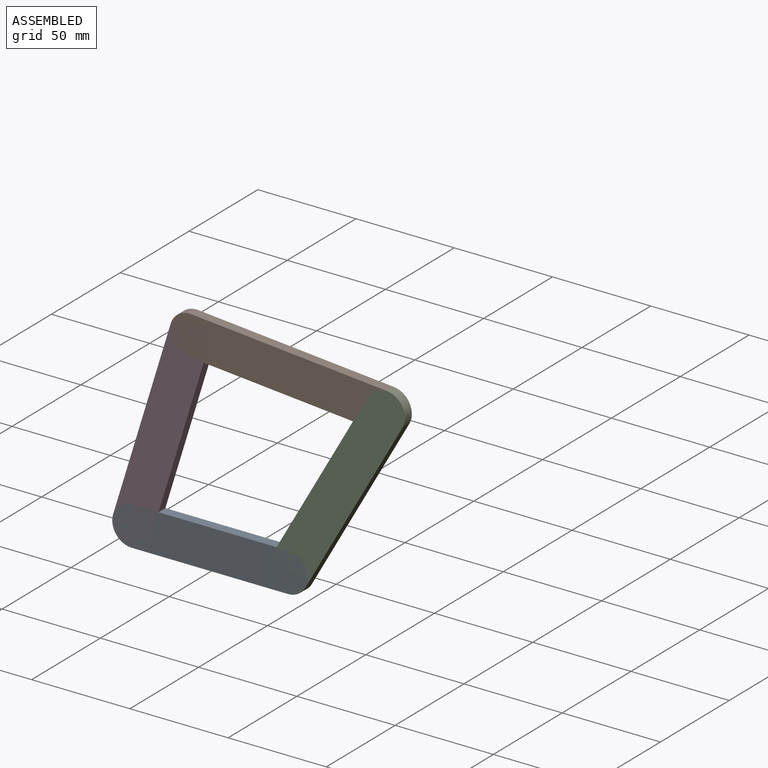
[diagram: assembled view]
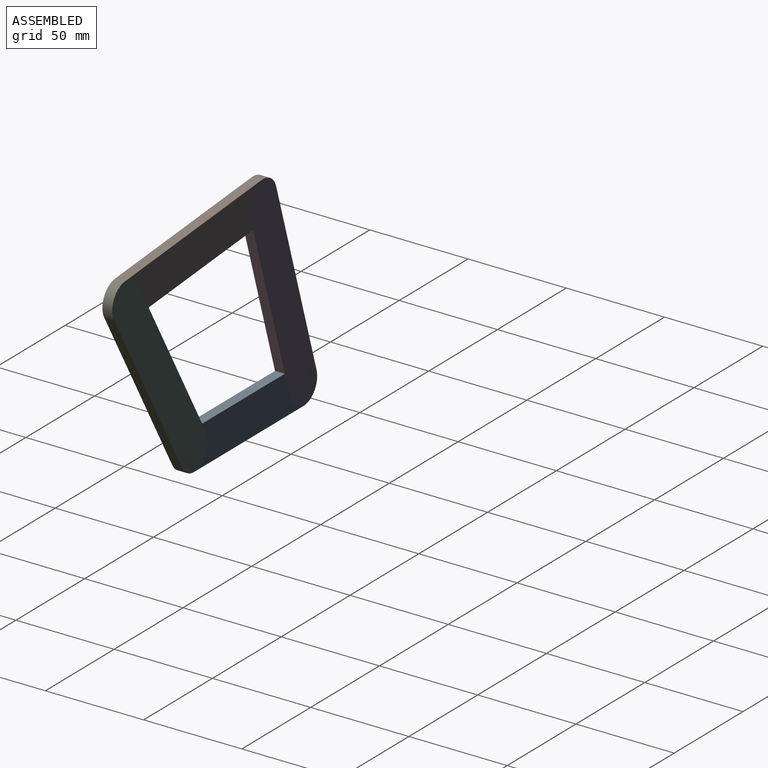
[diagram: assembled view, second angle]
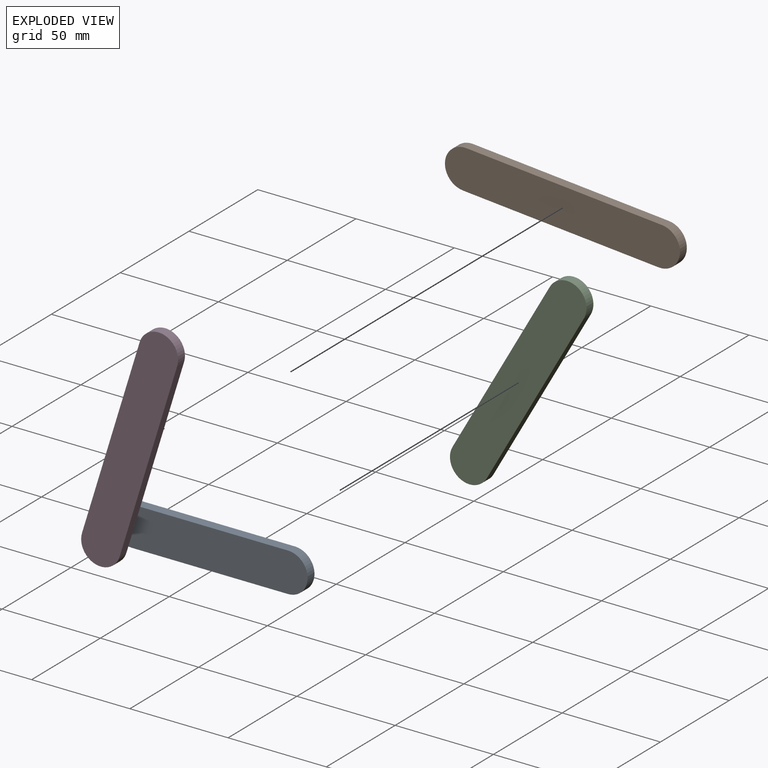
[diagram: exploded view]
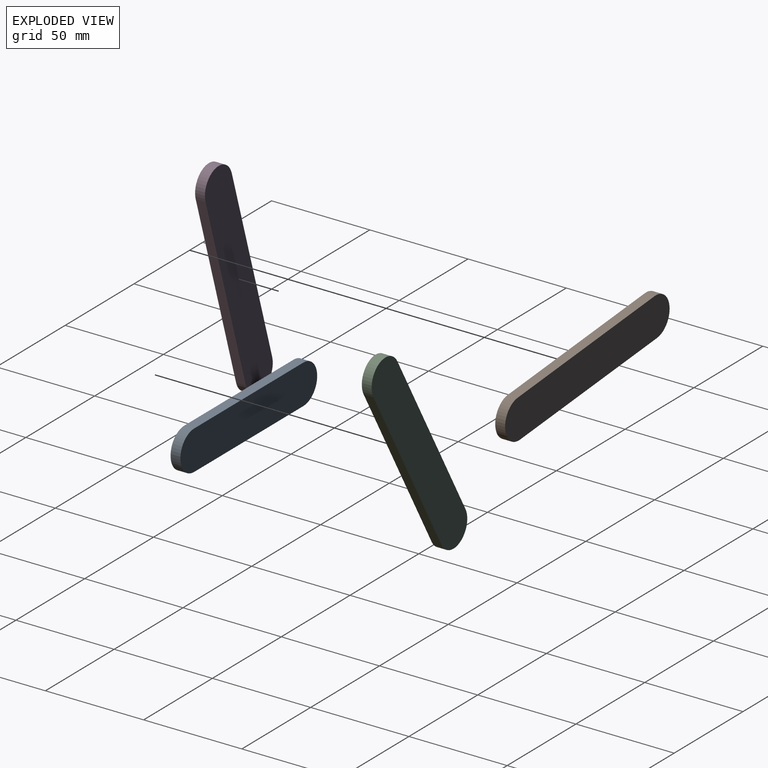
[diagram: exploded view, second angle]
ASSEMBLY  parts=4 mates=4
PART A: 6 faces, bbox 99.4x5x20 mm
  f0: plane 79.43x5mm, normal (0,0,-1), area 397.2mm2, adj f1,f3,f4,f5
  f1: cylinder r=10mm len=20mm, axis (0,1,0), area 157.1mm2, adj f0,f2,f4,f5
  f2: plane 79.43x5mm, normal (0,0,1), area 397.2mm2, adj f1,f3,f4,f5
  f3: cylinder r=10mm len=20mm, axis (0,1,0), area 157.1mm2, adj f0,f2,f4,f5
  f4: plane 99.43x20mm, normal (0,-1,0), area 1902.8mm2, adj f0,f1,f2,f3
  f5: plane 99.43x20mm, normal (0,1,0), area 1902.8mm2, adj f0,f1,f2,f3
PART B: 6 faces, bbox 58.5x5x112.3 mm
  f0: plane 92.3x38.48mm, normal (-0.92,0,0.38), area 500mm2, adj f1,f3,f4,f5
  f1: cylinder r=10mm len=19.23mm, axis (0,1,0), area 157.1mm2, adj f0,f2,f4,f5
  f2: plane 92.3x38.48mm, normal (0.92,0,-0.38), area 500mm2, adj f1,f3,f4,f5
  f3: cylinder r=10mm len=19.23mm, axis (0,1,0), area 157.1mm2, adj f0,f2,f4,f5
  f4: plane 112.3x58.48mm, normal (0,-1,0), area 2314.2mm2, adj f0,f1,f2,f3
  f5: plane 112.3x58.48mm, normal (0,1,0), area 2314.2mm2, adj f0,f1,f2,f3
PART C: same geometry as B
PART D: same geometry as B
PLACE A t=(-60.67,30.51,-43.09)mm fixed
PLACE B rot(axis=(0,-1,0),107.6deg) t=(151.98,30.51,-7.35)mm
PLACE C rot(axis=(0,1,0),7.1deg) t=(-18.11,30.51,63.11)mm
PLACE D rot(axis=(0,-1,0),5.6deg) t=(-103.62,30.51,37.94)mm
MATE revolute C.f1 <-> A.f1  axis (0,-1,0) through (92.6,25.51,23.08)mm
MATE revolute B.f1 <-> C.f3  axis (0,-1,0) through (142.12,25.51,109.96)mm
MATE revolute B.f3 <-> D.f3  axis (0,-1,0) through (42.5,25.51,118.68)mm
MATE revolute D.f1 <-> A.f3  axis (0,-1,0) through (13.17,25.51,23.08)mm
